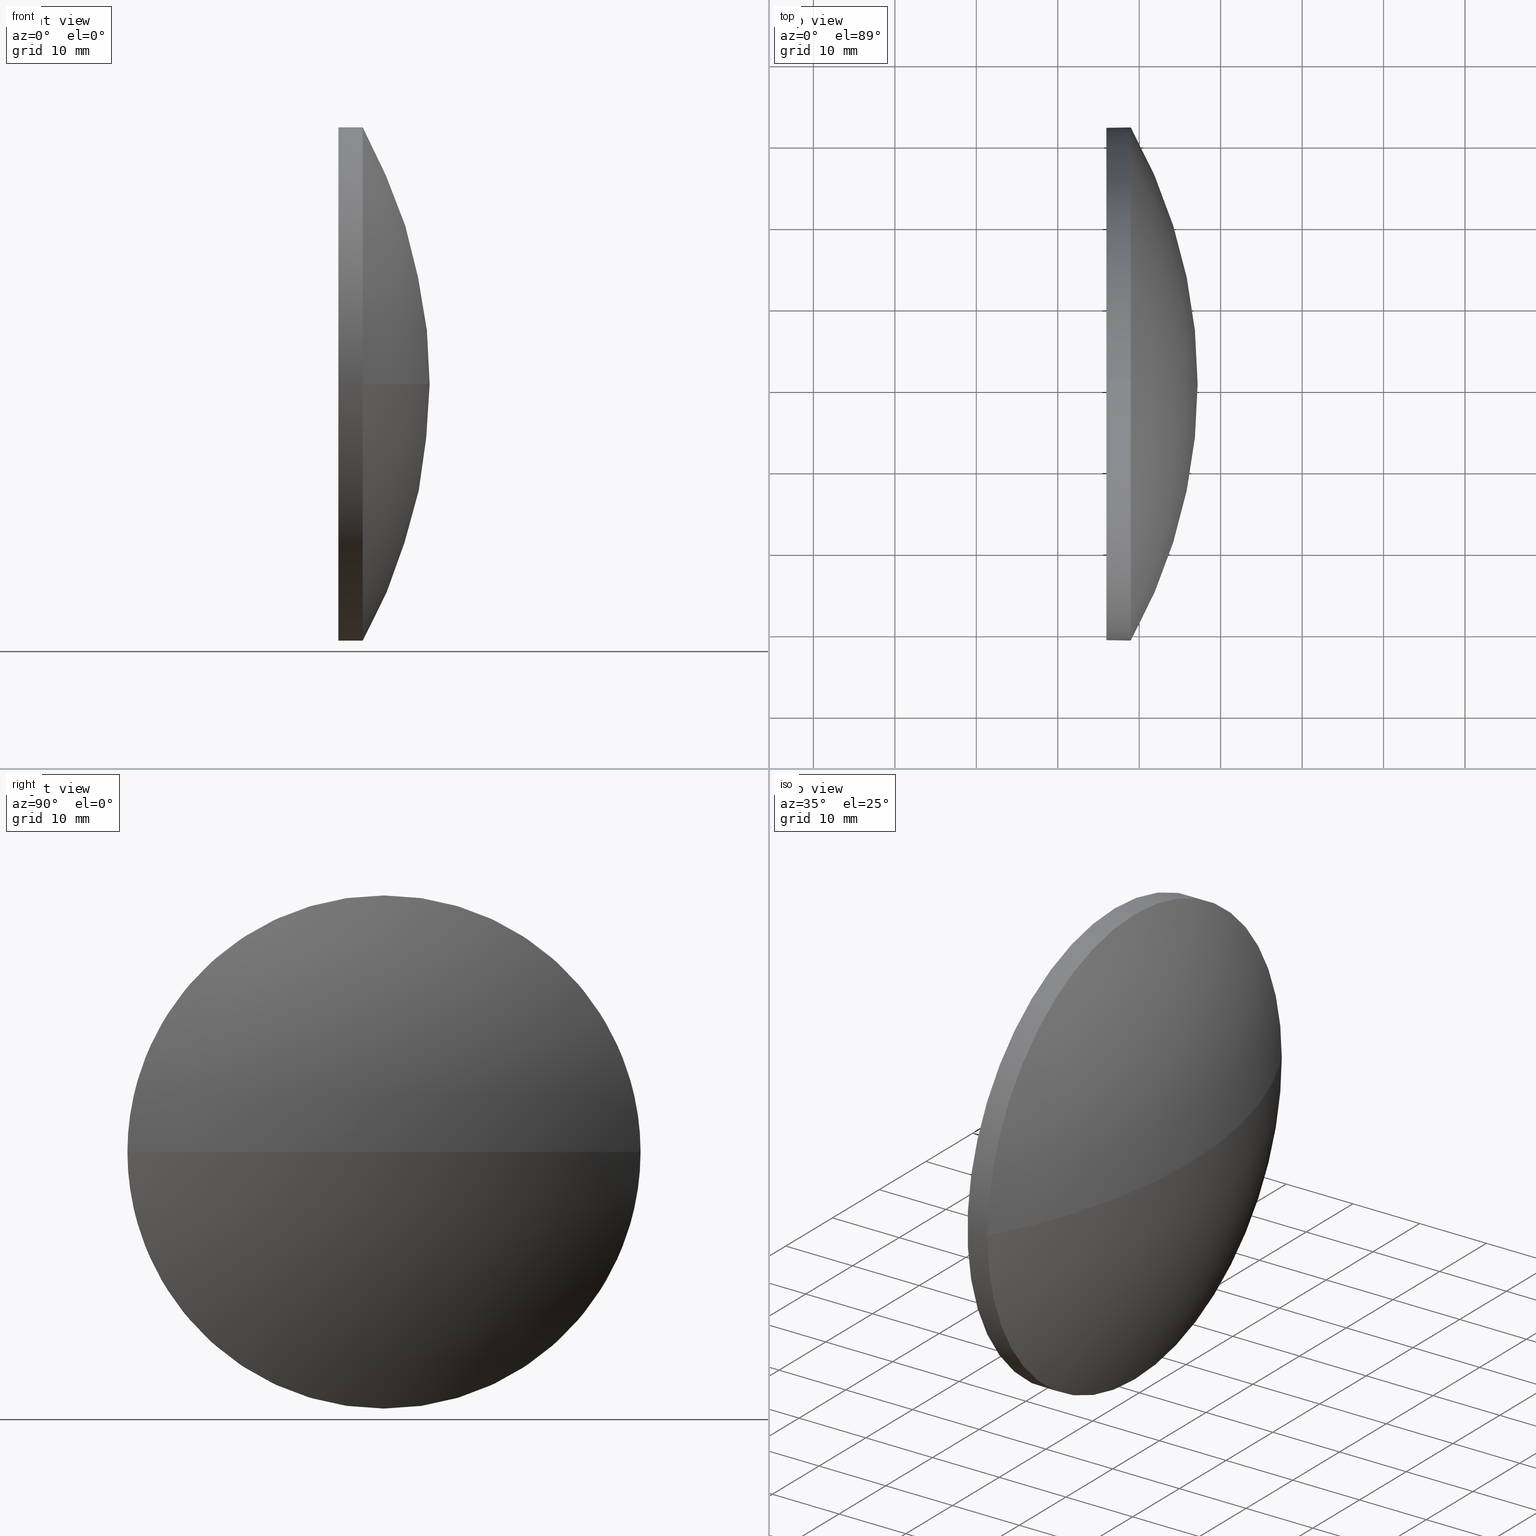
[diagram: canonical four-view strip — front | top / right | iso, engineering-drawing reading convention]
A machine part, canonical four-view strip (front | top / right | iso — engineering-drawing reading convention). The complete STEP part file that produces these views, byte-faithful:
ISO-10303-21;
HEADER;
FILE_DESCRIPTION (( 'STEP AP214' ),
    '1' );
FILE_NAME ('100159.STEP',
    '2019-05-16T07:42:12',
    ( '' ),
    ( '' ),
    'SwSTEP 2.0',
    'SolidWorks 2016',
    '' );
FILE_SCHEMA (( 'AUTOMOTIVE_DESIGN' ));
ENDSEC;

DATA;
#1 = CLOSED_SHELL ( 'NONE', ( #167, #39, #185, #96, #78 ) ) ;
#2 = CIRCLE ( 'NONE', #41, 31.50000000000000000 ) ;
#3 = DIRECTION ( 'NONE',  ( -0.0000000000000000000, -1.224646799147353200E-016, -1.000000000000000000 ) ) ;
#4 = MECHANICAL_DESIGN_GEOMETRIC_PRESENTATION_REPRESENTATION (  '', ( #168 ), #121 ) ;
#5 = APPLICATION_PROTOCOL_DEFINITION ( 'draft international standard', 'automotive_design', 1998, #44 ) ;
#6 = DIRECTION ( 'NONE',  ( 1.000000000000000000, 0.0000000000000000000, 0.0000000000000000000 ) ) ;
#7 = ORIENTED_EDGE ( 'NONE', *, *, #64, .F. ) ;
#8 = AXIS2_PLACEMENT_3D ( 'NONE', #179, #74, #26 ) ;
#9 =( NAMED_UNIT ( * ) SI_UNIT ( $, .STERADIAN. ) SOLID_ANGLE_UNIT ( ) );
#10 = VERTEX_POINT ( 'NONE', #136 ) ;
#11 = DIRECTION ( 'NONE',  ( 1.000000000000000000, -0.0000000000000000000, -0.0000000000000000000 ) ) ;
#12 =( NAMED_UNIT ( * ) PLANE_ANGLE_UNIT ( ) SI_UNIT ( $, .RADIAN. ) );
#13 =( NAMED_UNIT ( * ) SI_UNIT ( $, .STERADIAN. ) SOLID_ANGLE_UNIT ( ) );
#14 = FILL_AREA_STYLE ('',( #81 ) ) ;
#15 = ORIENTED_EDGE ( 'NONE', *, *, #76, .T. ) ;
#16 = CIRCLE ( 'NONE', #146, 31.50000000000000000 ) ;
#17 =( LENGTH_UNIT ( ) NAMED_UNIT ( * ) SI_UNIT ( .MILLI., .METRE. ) );
#18 = CIRCLE ( 'NONE', #8, 31.50000000000000000 ) ;
#19 = PRODUCT_DEFINITION_SHAPE ( 'NONE', 'NONE',  #83 ) ;
#20 = VERTEX_POINT ( 'NONE', #116 ) ;
#21 = CARTESIAN_POINT ( 'NONE',  ( 228.9653141997173700, 130.4671098528244200, -31.50000000000000000 ) ) ;
#22 = ORIENTED_EDGE ( 'NONE', *, *, #62, .F. ) ;
#23 = CIRCLE ( 'NONE', #150, 64.53435444579774600 ) ;
#24 = ORIENTED_EDGE ( 'NONE', *, *, #93, .T. ) ;
#25 = PLANE ( 'NONE',  #27 ) ;
#26 = DIRECTION ( 'NONE',  ( 0.0000000000000000000, 0.0000000000000000000, -1.000000000000000000 ) ) ;
#27 = AXIS2_PLACEMENT_3D ( 'NONE', #32, #154, #161 ) ;
#28 = APPLICATION_CONTEXT ( 'automotive_design' ) ;
#29 = ORIENTED_EDGE ( 'NONE', *, *, #62, .T. ) ;
#30 = AXIS2_PLACEMENT_3D ( 'NONE', #57, #37, #86 ) ;
#31 = CARTESIAN_POINT ( 'NONE',  ( 237.1753141997173800, 130.4671098528244200, -31.50000000000000000 ) ) ;
#32 = CARTESIAN_POINT ( 'NONE',  ( 225.9653141997173400, 130.4671098528244200, 0.0000000000000000000 ) ) ;
#33 = SPHERICAL_SURFACE ( 'NONE', #100, 64.53435444579774600 ) ;
#34 = DIRECTION ( 'NONE',  ( 1.000000000000000000, -0.0000000000000000000, -0.0000000000000000000 ) ) ;
#35 = PRODUCT_DEFINITION_CONTEXT ( 'detailed design', #28, 'design' ) ;
#36 = SURFACE_SIDE_STYLE ('',( #38 ) ) ;
#37 = DIRECTION ( 'NONE',  ( 1.000000000000000000, -0.0000000000000000000, -0.0000000000000000000 ) ) ;
#38 = SURFACE_STYLE_FILL_AREA ( #59 ) ;
#39 = ADVANCED_FACE ( 'NONE', ( #110 ), #33, .T. ) ;
#40 = UNCERTAINTY_MEASURE_WITH_UNIT (LENGTH_MEASURE( 1.000000000000000100E-005 ), #106, 'distance_accuracy_value', 'NONE');
#41 = AXIS2_PLACEMENT_3D ( 'NONE', #176, #71, #145 ) ;
#42 = ORIENTED_EDGE ( 'NONE', *, *, #162, .F. ) ;
#43 = CARTESIAN_POINT ( 'NONE',  ( 228.9653141997173700, 98.96710985282442200, 0.0000000000000000000 ) ) ;
#44 = APPLICATION_CONTEXT ( 'automotive_design' ) ;
#45 = PRESENTATION_LAYER_ASSIGNMENT (  '', '', ( #168 ) ) ;
#46 = CARTESIAN_POINT ( 'NONE',  ( 172.6409597539196500, 130.4671098528244200, 0.0000000000000000000 ) ) ;
#47 = PRODUCT ( '100159', '100159', '', ( #112 ) ) ;
#48 =( GEOMETRIC_REPRESENTATION_CONTEXT ( 3 ) GLOBAL_UNCERTAINTY_ASSIGNED_CONTEXT ( ( #40 ) ) GLOBAL_UNIT_ASSIGNED_CONTEXT ( ( #106, #56, #141 ) ) REPRESENTATION_CONTEXT ( 'NONE', 'WORKASPACE' ) );
#49 = ORIENTED_EDGE ( 'NONE', *, *, #76, .F. ) ;
#50 = SPHERICAL_SURFACE ( 'NONE', #184, 64.53435444579774600 ) ;
#51 = MANIFOLD_SOLID_BREP ( '��ת2', #1 ) ;
#52 = VERTEX_POINT ( 'NONE', #21 ) ;
#53 = CYLINDRICAL_SURFACE ( 'NONE', #101, 31.50000000000000000 ) ;
#54 = DIRECTION ( 'NONE',  ( 1.000000000000000000, -0.0000000000000000000, -0.0000000000000000000 ) ) ;
#55 =( LENGTH_UNIT ( ) NAMED_UNIT ( * ) SI_UNIT ( .MILLI., .METRE. ) );
#56 =( NAMED_UNIT ( * ) PLANE_ANGLE_UNIT ( ) SI_UNIT ( $, .RADIAN. ) );
#57 = CARTESIAN_POINT ( 'NONE',  ( 228.9653141997173700, 130.4671098528244200, 0.0000000000000000000 ) ) ;
#58 = EDGE_CURVE ( 'NONE', #147, #148, #174, .T. ) ;
#59 = FILL_AREA_STYLE ('',( #158 ) ) ;
#60 = DIRECTION ( 'NONE',  ( 0.0000000000000000000, 0.0000000000000000000, -1.000000000000000000 ) ) ;
#61 = MECHANICAL_DESIGN_GEOMETRIC_PRESENTATION_REPRESENTATION (  '', ( #159 ), #115 ) ;
#62 = EDGE_CURVE ( 'NONE', #147, #52, #90, .T. ) ;
#63 = ORIENTED_EDGE ( 'NONE', *, *, #87, .F. ) ;
#64 = EDGE_CURVE ( 'NONE', #139, #52, #16, .T. ) ;
#65 = DIRECTION ( 'NONE',  ( 0.0000000000000000000, 0.0000000000000000000, -1.000000000000000000 ) ) ;
#66 = PRODUCT_RELATED_PRODUCT_CATEGORY ( 'part', '', ( #47 ) ) ;
#67 = CARTESIAN_POINT ( 'NONE',  ( 237.1753141997173800, 130.4671098528244200, 31.50000000000000000 ) ) ;
#68 = SURFACE_STYLE_FILL_AREA ( #14 ) ;
#69 = ORIENTED_EDGE ( 'NONE', *, *, #144, .F. ) ;
#70 = DIRECTION ( 'NONE',  ( 0.0000000000000000000, 0.0000000000000000000, 1.000000000000000000 ) ) ;
#71 = DIRECTION ( 'NONE',  ( 1.000000000000000000, -0.0000000000000000000, -0.0000000000000000000 ) ) ;
#72 = CARTESIAN_POINT ( 'NONE',  ( 225.9653141997173400, 130.4671098528244200, -31.50000000000000000 ) ) ;
#73 = ORIENTED_EDGE ( 'NONE', *, *, #77, .T. ) ;
#74 = DIRECTION ( 'NONE',  ( 1.000000000000000000, -0.0000000000000000000, -0.0000000000000000000 ) ) ;
#75 = ORIENTED_EDGE ( 'NONE', *, *, #77, .F. ) ;
#76 = EDGE_CURVE ( 'NONE', #52, #114, #111, .T. ) ;
#77 = EDGE_CURVE ( 'NONE', #148, #147, #18, .T. ) ;
#78 = ADVANCED_FACE ( 'NONE', ( #95 ), #25, .T. ) ;
#79 = ORIENTED_EDGE ( 'NONE', *, *, #113, .F. ) ;
#80 = SHAPE_DEFINITION_REPRESENTATION ( #19, #172 ) ;
#81 = FILL_AREA_STYLE_COLOUR ( '', #163 ) ;
#82 = CARTESIAN_POINT ( 'NONE',  ( 228.9653141997173700, 130.4671098528244200, 0.0000000000000000000 ) ) ;
#83 = PRODUCT_DEFINITION ( 'δ֪', '', #180, #35 ) ;
#84 = ORIENTED_EDGE ( 'NONE', *, *, #162, .T. ) ;
#85 = DIRECTION ( 'NONE',  ( 1.000000000000000000, -0.0000000000000000000, -0.0000000000000000000 ) ) ;
#86 = DIRECTION ( 'NONE',  ( 0.0000000000000000000, 0.0000000000000000000, -1.000000000000000000 ) ) ;
#87 = EDGE_CURVE ( 'NONE', #148, #20, #98, .T. ) ;
#88 = CARTESIAN_POINT ( 'NONE',  ( 172.6409597539196500, 130.4671098528244200, 0.0000000000000000000 ) ) ;
#89 = EDGE_LOOP ( 'NONE', ( #69, #97, #84, #24 ) ) ;
#90 = LINE ( 'NONE', #31, #135 ) ;
#91 = DIRECTION ( 'NONE',  ( 0.0000000000000000000, 0.0000000000000000000, -1.000000000000000000 ) ) ;
#92 = CARTESIAN_POINT ( 'NONE',  ( 228.9653141997173700, 161.9671098528244200, -3.857637417314163500E-015 ) ) ;
#93 = EDGE_CURVE ( 'NONE', #139, #10, #23, .T. ) ;
#94 = FACE_OUTER_BOUND ( 'NONE', #183, .T. ) ;
#95 = FACE_OUTER_BOUND ( 'NONE', #119, .T. ) ;
#96 = ADVANCED_FACE ( 'NONE', ( #132 ), #157, .T. ) ;
#97 = ORIENTED_EDGE ( 'NONE', *, *, #113, .T. ) ;
#98 = LINE ( 'NONE', #67, #142 ) ;
#99 = ORIENTED_EDGE ( 'NONE', *, *, #64, .T. ) ;
#100 = AXIS2_PLACEMENT_3D ( 'NONE', #117, #173, #140 ) ;
#101 = AXIS2_PLACEMENT_3D ( 'NONE', #143, #85, #102 ) ;
#102 = DIRECTION ( 'NONE',  ( 0.0000000000000000000, 0.0000000000000000000, -1.000000000000000000 ) ) ;
#103 = CARTESIAN_POINT ( 'NONE',  ( 0.0000000000000000000, 0.0000000000000000000, 0.0000000000000000000 ) ) ;
#104 = DIRECTION ( 'NONE',  ( 1.000000000000000000, -0.0000000000000000000, -0.0000000000000000000 ) ) ;
#105 = AXIS2_PLACEMENT_3D ( 'NONE', #107, #177, #91 ) ;
#106 =( LENGTH_UNIT ( ) NAMED_UNIT ( * ) SI_UNIT ( .MILLI., .METRE. ) );
#107 = CARTESIAN_POINT ( 'NONE',  ( 237.1753141997173800, 130.4671098528244200, 0.0000000000000000000 ) ) ;
#108 = UNCERTAINTY_MEASURE_WITH_UNIT (LENGTH_MEASURE( 1.000000000000000100E-005 ), #55, 'distance_accuracy_value', 'NONE');
#109 = ORIENTED_EDGE ( 'NONE', *, *, #93, .F. ) ;
#110 = FACE_OUTER_BOUND ( 'NONE', #134, .T. ) ;
#111 = CIRCLE ( 'NONE', #137, 31.50000000000000000 ) ;
#112 = PRODUCT_CONTEXT ( 'NONE', #44, 'mechanical' ) ;
#113 = EDGE_CURVE ( 'NONE', #114, #20, #2, .T. ) ;
#114 = VERTEX_POINT ( 'NONE', #92 ) ;
#115 =( GEOMETRIC_REPRESENTATION_CONTEXT ( 3 ) GLOBAL_UNCERTAINTY_ASSIGNED_CONTEXT ( ( #108 ) ) GLOBAL_UNIT_ASSIGNED_CONTEXT ( ( #55, #12, #13 ) ) REPRESENTATION_CONTEXT ( 'NONE', 'WORKASPACE' ) );
#116 = CARTESIAN_POINT ( 'NONE',  ( 228.9653141997173700, 130.4671098528244200, 31.50000000000000000 ) ) ;
#117 = CARTESIAN_POINT ( 'NONE',  ( 172.6409597539196500, 130.4671098528244200, 0.0000000000000000000 ) ) ;
#118 = DIRECTION ( 'NONE',  ( 1.000000000000000000, -0.0000000000000000000, -0.0000000000000000000 ) ) ;
#119 = EDGE_LOOP ( 'NONE', ( #171, #75 ) ) ;
#120 = DIRECTION ( 'NONE',  ( 0.0000000000000000000, -1.000000000000000000, 0.0000000000000000000 ) ) ;
#121 =( GEOMETRIC_REPRESENTATION_CONTEXT ( 3 ) GLOBAL_UNCERTAINTY_ASSIGNED_CONTEXT ( ( #129 ) ) GLOBAL_UNIT_ASSIGNED_CONTEXT ( ( #17, #182, #9 ) ) REPRESENTATION_CONTEXT ( 'NONE', 'WORKASPACE' ) );
#122 = DIRECTION ( 'NONE',  ( 0.0000000000000000000, 1.000000000000000000, -1.224646799147353200E-016 ) ) ;
#123 = CARTESIAN_POINT ( 'NONE',  ( 225.9653141997173400, 130.4671098528244200, 31.50000000000000000 ) ) ;
#124 = SURFACE_STYLE_USAGE ( .BOTH. , #36 ) ;
#125 = DIRECTION ( 'NONE',  ( 1.000000000000000000, 0.0000000000000000000, 0.0000000000000000000 ) ) ;
#126 = PRESENTATION_STYLE_ASSIGNMENT (( #124 ) ) ;
#127 = APPLICATION_PROTOCOL_DEFINITION ( 'draft international standard', 'automotive_design', 1998, #28 ) ;
#128 = ORIENTED_EDGE ( 'NONE', *, *, #58, .T. ) ;
#129 = UNCERTAINTY_MEASURE_WITH_UNIT (LENGTH_MEASURE( 1.000000000000000100E-005 ), #17, 'distance_accuracy_value', 'NONE');
#130 = EDGE_LOOP ( 'NONE', ( #63, #73, #29, #7, #42 ) ) ;
#131 = PRESENTATION_LAYER_ASSIGNMENT (  '', '', ( #159 ) ) ;
#132 = FACE_OUTER_BOUND ( 'NONE', #130, .T. ) ;
#133 = AXIS2_PLACEMENT_3D ( 'NONE', #156, #3, #122 ) ;
#134 = EDGE_LOOP ( 'NONE', ( #99, #15, #178, #109 ) ) ;
#135 = VECTOR ( 'NONE', #54, 1000.000000000000000 ) ;
#136 = CARTESIAN_POINT ( 'NONE',  ( 237.1753141997173800, 130.4671098528244200, 0.0000000000000000000 ) ) ;
#137 = AXIS2_PLACEMENT_3D ( 'NONE', #181, #34, #60 ) ;
#138 = SURFACE_STYLE_USAGE ( .BOTH. , #153 ) ;
#139 = VERTEX_POINT ( 'NONE', #43 ) ;
#140 = DIRECTION ( 'NONE',  ( 0.0000000000000000000, -1.000000000000000000, 0.0000000000000000000 ) ) ;
#141 =( NAMED_UNIT ( * ) SI_UNIT ( $, .STERADIAN. ) SOLID_ANGLE_UNIT ( ) );
#142 = VECTOR ( 'NONE', #104, 1000.000000000000000 ) ;
#143 = CARTESIAN_POINT ( 'NONE',  ( 237.1753141997173800, 130.4671098528244200, 0.0000000000000000000 ) ) ;
#144 = EDGE_CURVE ( 'NONE', #114, #10, #186, .T. ) ;
#145 = DIRECTION ( 'NONE',  ( 0.0000000000000000000, 0.0000000000000000000, -1.000000000000000000 ) ) ;
#146 = AXIS2_PLACEMENT_3D ( 'NONE', #82, #11, #152 ) ;
#147 = VERTEX_POINT ( 'NONE', #72 ) ;
#148 = VERTEX_POINT ( 'NONE', #123 ) ;
#149 = CIRCLE ( 'NONE', #30, 31.50000000000000000 ) ;
#150 = AXIS2_PLACEMENT_3D ( 'NONE', #46, #70, #6 ) ;
#151 = CARTESIAN_POINT ( 'NONE',  ( 225.9653141997173400, 130.4671098528244200, 0.0000000000000000000 ) ) ;
#152 = DIRECTION ( 'NONE',  ( 0.0000000000000000000, 0.0000000000000000000, -1.000000000000000000 ) ) ;
#153 = SURFACE_SIDE_STYLE ('',( #68 ) ) ;
#154 = DIRECTION ( 'NONE',  ( -1.000000000000000000, 0.0000000000000000000, 0.0000000000000000000 ) ) ;
#155 = ORIENTED_EDGE ( 'NONE', *, *, #87, .T. ) ;
#156 = CARTESIAN_POINT ( 'NONE',  ( 172.6409597539196500, 130.4671098528244200, 0.0000000000000000000 ) ) ;
#157 = CYLINDRICAL_SURFACE ( 'NONE', #105, 31.50000000000000000 ) ;
#158 = FILL_AREA_STYLE_COLOUR ( '', #175 ) ;
#159 = STYLED_ITEM ( 'NONE', ( #169 ), #51 ) ;
#160 = DIRECTION ( 'NONE',  ( 0.0000000000000000000, -0.0000000000000000000, -1.000000000000000000 ) ) ;
#161 = DIRECTION ( 'NONE',  ( 0.0000000000000000000, 0.0000000000000000000, 1.000000000000000000 ) ) ;
#162 = EDGE_CURVE ( 'NONE', #20, #139, #149, .T. ) ;
#163 = COLOUR_RGB ( '',1.000000000000000000, 1.000000000000000000, 1.000000000000000000 ) ;
#164 = FACE_OUTER_BOUND ( 'NONE', #89, .T. ) ;
#165 = DIRECTION ( 'NONE',  ( 0.0000000000000000000, 0.0000000000000000000, 1.000000000000000000 ) ) ;
#166 = AXIS2_PLACEMENT_3D ( 'NONE', #103, #165, #125 ) ;
#167 = ADVANCED_FACE ( 'NONE', ( #94 ), #53, .T. ) ;
#168 = STYLED_ITEM ( 'NONE', ( #126 ), #172 ) ;
#169 = PRESENTATION_STYLE_ASSIGNMENT (( #138 ) ) ;
#170 = AXIS2_PLACEMENT_3D ( 'NONE', #151, #118, #65 ) ;
#171 = ORIENTED_EDGE ( 'NONE', *, *, #58, .F. ) ;
#172 = ADVANCED_BREP_SHAPE_REPRESENTATION ( '100159', ( #51, #166 ), #48 ) ;
#173 = DIRECTION ( 'NONE',  ( 0.0000000000000000000, -0.0000000000000000000, -1.000000000000000000 ) ) ;
#174 = CIRCLE ( 'NONE', #170, 31.50000000000000000 ) ;
#175 = COLOUR_RGB ( '',1.000000000000000000, 1.000000000000000000, 1.000000000000000000 ) ;
#176 = CARTESIAN_POINT ( 'NONE',  ( 228.9653141997173700, 130.4671098528244200, 0.0000000000000000000 ) ) ;
#177 = DIRECTION ( 'NONE',  ( 1.000000000000000000, -0.0000000000000000000, -0.0000000000000000000 ) ) ;
#178 = ORIENTED_EDGE ( 'NONE', *, *, #144, .T. ) ;
#179 = CARTESIAN_POINT ( 'NONE',  ( 225.9653141997173400, 130.4671098528244200, 0.0000000000000000000 ) ) ;
#180 = PRODUCT_DEFINITION_FORMATION_WITH_SPECIFIED_SOURCE ( '�κ�', '', #47, .NOT_KNOWN. ) ;
#181 = CARTESIAN_POINT ( 'NONE',  ( 228.9653141997173700, 130.4671098528244200, 0.0000000000000000000 ) ) ;
#182 =( NAMED_UNIT ( * ) PLANE_ANGLE_UNIT ( ) SI_UNIT ( $, .RADIAN. ) );
#183 = EDGE_LOOP ( 'NONE', ( #128, #155, #79, #49, #22 ) ) ;
#184 = AXIS2_PLACEMENT_3D ( 'NONE', #88, #160, #120 ) ;
#185 = ADVANCED_FACE ( 'NONE', ( #164 ), #50, .T. ) ;
#186 = CIRCLE ( 'NONE', #133, 64.53435444579774600 ) ;
ENDSEC;
END-ISO-10303-21;
